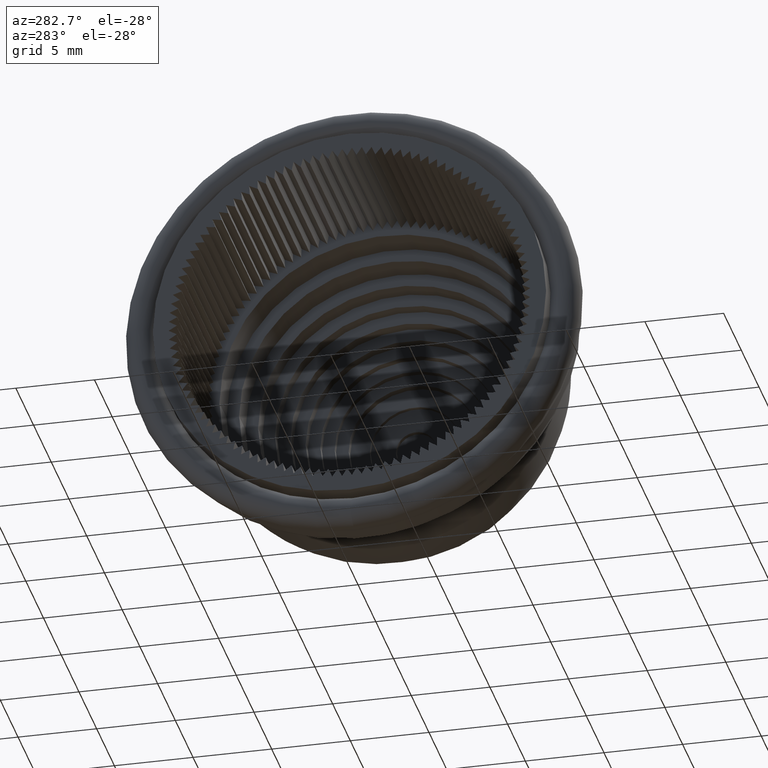
[diagram: clean part render]
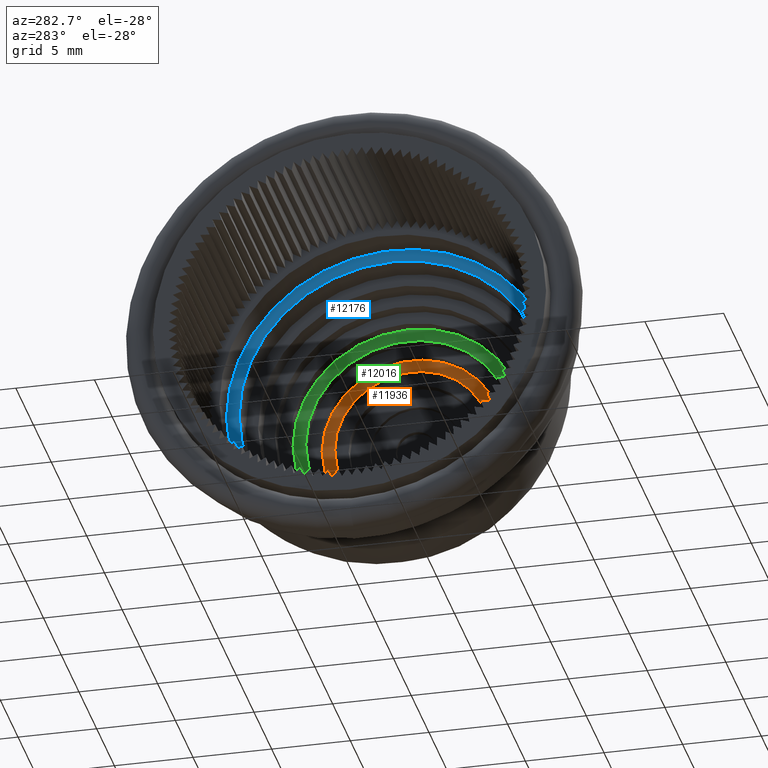
[diagram: same view with three faces highlighted in distinct colors, each labeled with its STEP entity id]
A machine part, auxiliary view with three faces highlighted in distinct colors.
Their STEP definitions:

[orange] entity #11936 — the highlighted planar face has unit normal (-1, 0, 0).
#11902=CARTESIAN_POINT('',(-4.823275504480936,8.780505523844449,0.0));
#11903=VERTEX_POINT('',#11902);
#11904=CARTESIAN_POINT('',(-4.823275504480936,3.867980793193076,0.0));
#11905=DIRECTION('',(1.0,0.0,0.0));
#11906=DIRECTION('',(0.0,1.0,0.0));
#11907=AXIS2_PLACEMENT_3D('',#11904,#11905,#11906);
#11908=CIRCLE('',#11907,4.912524730651373);
#11909=EDGE_CURVE('',#11903,#11903,#11908,.T.);
#11917=CARTESIAN_POINT('',(-4.823275504480936,9.180505523844449,0.0));
#11918=DIRECTION('',(-1.0,0.0,0.0));
#11919=DIRECTION('',(0.0,0.0,1.0));
#11920=AXIS2_PLACEMENT_3D('',#11917,#11918,#11919);
#11921=PLANE('',#11920);
#11922=CARTESIAN_POINT('',(-4.823275504480937,9.580505523844449,0.0));
#11923=VERTEX_POINT('',#11922);
#11924=CARTESIAN_POINT('',(-4.823275504480937,3.867980793193076,0.0));
#11925=DIRECTION('',(1.0,0.0,0.0));
#11926=DIRECTION('',(0.0,1.0,0.0));
#11927=AXIS2_PLACEMENT_3D('',#11924,#11925,#11926);
#11928=CIRCLE('',#11927,5.712524730651374);
#11929=EDGE_CURVE('',#11923,#11923,#11928,.T.);
#11930=ORIENTED_EDGE('',*,*,#11929,.F.);
#11931=EDGE_LOOP('',(#11930));
#11932=FACE_OUTER_BOUND('',#11931,.T.);
#11933=ORIENTED_EDGE('',*,*,#11909,.T.);
#11934=EDGE_LOOP('',(#11933));
#11935=FACE_BOUND('',#11934,.T.);
#11936=ADVANCED_FACE('',(#11932,#11935),#11921,.T.);

[blue] entity #12176 — the highlighted planar face has unit normal (-1, 0, 0).
#12142=CARTESIAN_POINT('',(-10.485065524830187,13.580505523844447,0.0));
#12143=VERTEX_POINT('',#12142);
#12144=CARTESIAN_POINT('',(-10.485065524830187,3.867980793193076,0.0));
#12145=DIRECTION('',(1.0,0.0,0.0));
#12146=DIRECTION('',(0.0,1.0,0.0));
#12147=AXIS2_PLACEMENT_3D('',#12144,#12145,#12146);
#12148=CIRCLE('',#12147,9.712524730651373);
#12149=EDGE_CURVE('',#12143,#12143,#12148,.T.);
#12157=CARTESIAN_POINT('',(-10.485065524830187,13.980505523844450,0.0));
#12158=DIRECTION('',(-1.0,0.0,0.0));
#12159=DIRECTION('',(0.0,0.0,1.0));
#12160=AXIS2_PLACEMENT_3D('',#12157,#12158,#12159);
#12161=PLANE('',#12160);
#12162=CARTESIAN_POINT('',(-10.485065524830189,14.380505523844448,0.0));
#12163=VERTEX_POINT('',#12162);
#12164=CARTESIAN_POINT('',(-10.485065524830189,3.867980793193076,0.0));
#12165=DIRECTION('',(1.0,0.0,0.0));
#12166=DIRECTION('',(0.0,1.0,0.0));
#12167=AXIS2_PLACEMENT_3D('',#12164,#12165,#12166);
#12168=CIRCLE('',#12167,10.512524730651373);
#12169=EDGE_CURVE('',#12163,#12163,#12168,.T.);
#12170=ORIENTED_EDGE('',*,*,#12169,.F.);
#12171=EDGE_LOOP('',(#12170));
#12172=FACE_OUTER_BOUND('',#12171,.T.);
#12173=ORIENTED_EDGE('',*,*,#12149,.T.);
#12174=EDGE_LOOP('',(#12173));
#12175=FACE_BOUND('',#12174,.T.);
#12176=ADVANCED_FACE('',(#12172,#12175),#12161,.T.);

[green] entity #12016 — the highlighted planar face has unit normal (-1, 0, 0).
#11982=CARTESIAN_POINT('',(-5.920401766472452,10.380505523844450,0.0));
#11983=VERTEX_POINT('',#11982);
#11984=CARTESIAN_POINT('',(-5.920401766472452,3.867980793193076,0.0));
#11985=DIRECTION('',(1.0,0.0,0.0));
#11986=DIRECTION('',(0.0,1.0,0.0));
#11987=AXIS2_PLACEMENT_3D('',#11984,#11985,#11986);
#11988=CIRCLE('',#11987,6.512524730651375);
#11989=EDGE_CURVE('',#11983,#11983,#11988,.T.);
#11997=CARTESIAN_POINT('',(-5.920401766472453,10.780505523844450,0.0));
#11998=DIRECTION('',(-1.0,0.0,0.0));
#11999=DIRECTION('',(0.0,0.0,1.0));
#12000=AXIS2_PLACEMENT_3D('',#11997,#11998,#11999);
#12001=PLANE('',#12000);
#12002=CARTESIAN_POINT('',(-5.920401766472454,11.180505523844451,0.0));
#12003=VERTEX_POINT('',#12002);
#12004=CARTESIAN_POINT('',(-5.920401766472454,3.867980793193076,0.0));
#12005=DIRECTION('',(1.0,0.0,0.0));
#12006=DIRECTION('',(0.0,1.0,0.0));
#12007=AXIS2_PLACEMENT_3D('',#12004,#12005,#12006);
#12008=CIRCLE('',#12007,7.312524730651376);
#12009=EDGE_CURVE('',#12003,#12003,#12008,.T.);
#12010=ORIENTED_EDGE('',*,*,#12009,.F.);
#12011=EDGE_LOOP('',(#12010));
#12012=FACE_OUTER_BOUND('',#12011,.T.);
#12013=ORIENTED_EDGE('',*,*,#11989,.T.);
#12014=EDGE_LOOP('',(#12013));
#12015=FACE_BOUND('',#12014,.T.);
#12016=ADVANCED_FACE('',(#12012,#12015),#12001,.T.);